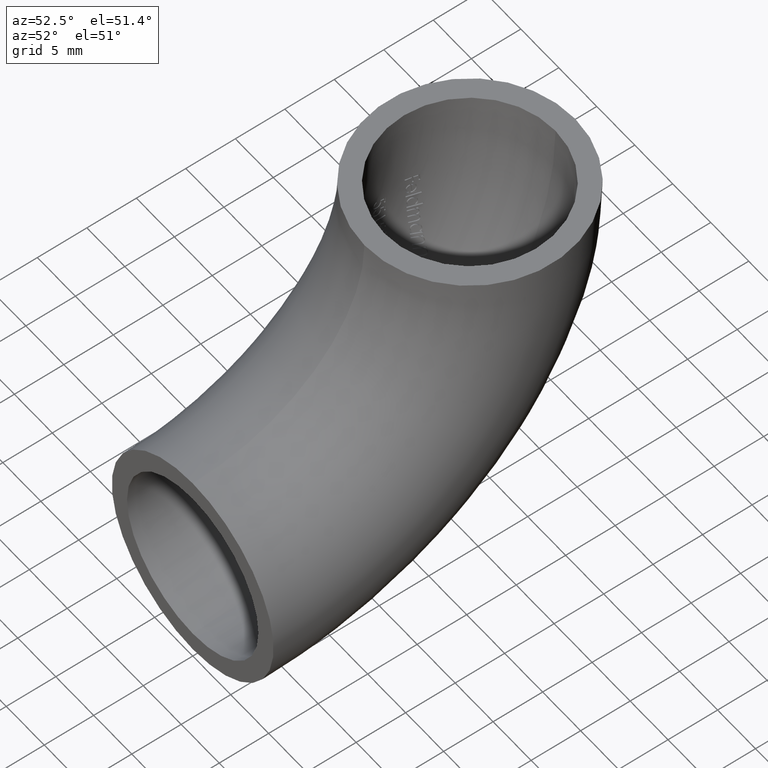
[diagram: clean part render]
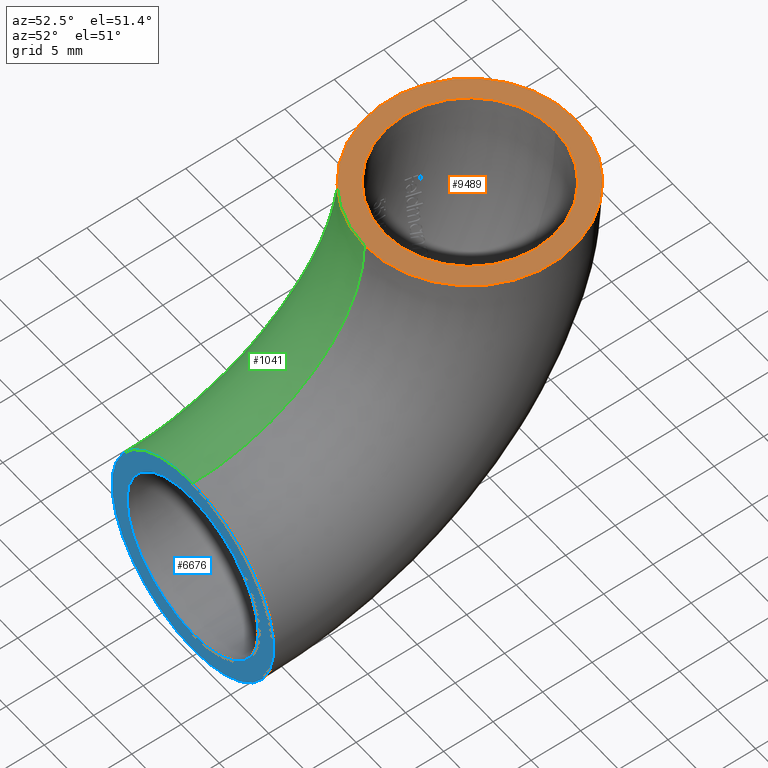
[diagram: same view with three faces highlighted in distinct colors, each labeled with its STEP entity id]
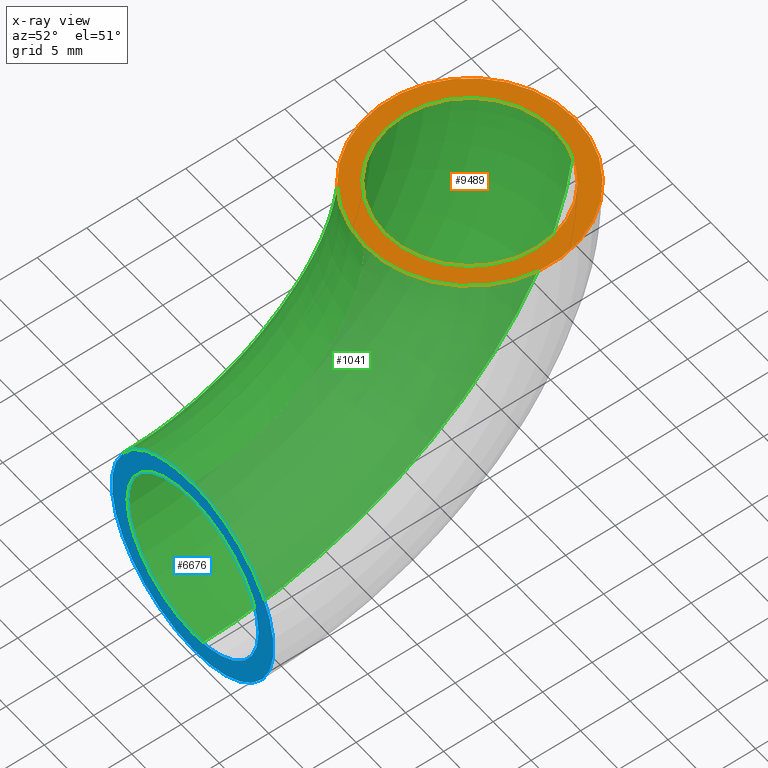
[diagram: x-ray of the same camera — body ghosted, the three highlighted faces saturated]
A machine part, auxiliary view with three faces highlighted in distinct colors.
The next image is the same camera in x-ray (body ghosted, the three faces saturated) — at least one of them is partly hidden behind the body in this view.
Their STEP definitions:

[orange] entity #9489 — the highlighted planar face has unit normal (0, 0, 1).
#23 = ORIENTED_EDGE ( 'NONE', *, *, #7517, .F. ) ;
#276 = DIRECTION ( 'NONE',  ( 0.0000000000000000000, 6.123233995736766000E-017, 1.000000000000000000 ) ) ;
#385 = CARTESIAN_POINT ( 'NONE',  ( 0.0000000000000000000, 28.00000000000000000, -1.714505518806294600E-015 ) ) ;
#405 = AXIS2_PLACEMENT_3D ( 'NONE', #11003, #3173, #2284 ) ;
#595 = VERTEX_POINT ( 'NONE', #2759 ) ;
#1650 = ORIENTED_EDGE ( 'NONE', *, *, #1679, .T. ) ;
#1679 = EDGE_CURVE ( 'NONE', #2364, #2563, #10826, .T. ) ;
#1910 = CARTESIAN_POINT ( 'NONE',  ( 0.0000000000000000000, 28.00000000000000000, -1.714505518806294600E-015 ) ) ;
#2033 = DIRECTION ( 'NONE',  ( 0.0000000000000000000, -1.000000000000000000, 6.123233995736766000E-017 ) ) ;
#2284 = DIRECTION ( 'NONE',  ( 0.0000000000000000000, -1.000000000000000000, 6.123233995736766000E-017 ) ) ;
#2364 = VERTEX_POINT ( 'NONE', #4855 ) ;
#2563 = VERTEX_POINT ( 'NONE', #10537 ) ;
#2759 = CARTESIAN_POINT ( 'NONE',  ( 0.0000000000000000000, 19.34999999999999800, -1.184845778175064300E-015 ) ) ;
#3173 = DIRECTION ( 'NONE',  ( 0.0000000000000000000, 6.123233995736766000E-017, 1.000000000000000000 ) ) ;
#3488 = AXIS2_PLACEMENT_3D ( 'NONE', #385, #5624, #7398 ) ;
#4126 = CARTESIAN_POINT ( 'NONE',  ( 0.0000000000000000000, 28.00000000000000000, -1.714505518806294600E-015 ) ) ;
#4150 = CARTESIAN_POINT ( 'NONE',  ( 0.0000000000000000000, 36.64999999999999900, -2.244165259437524800E-015 ) ) ;
#4196 = DIRECTION ( 'NONE',  ( 0.0000000000000000000, -1.000000000000000000, 6.123233995736766000E-017 ) ) ;
#4205 = FACE_BOUND ( 'NONE', #7485, .T. ) ;
#4356 = ORIENTED_EDGE ( 'NONE', *, *, #11332, .T. ) ;
#4357 = CIRCLE ( 'NONE', #8899, 8.650000000000002100 ) ;
#4548 = DIRECTION ( 'NONE',  ( 0.0000000000000000000, -1.000000000000000000, 6.123233995736766000E-017 ) ) ;
#4855 = CARTESIAN_POINT ( 'NONE',  ( 0.0000000000000000000, 17.35000000000000100, -1.062381098260328900E-015 ) ) ;
#5405 = VERTEX_POINT ( 'NONE', #4150 ) ;
#5517 = CARTESIAN_POINT ( 'NONE',  ( 0.0000000000000000000, 28.00000000000000000, -1.714505518806294600E-015 ) ) ;
#5581 = FACE_OUTER_BOUND ( 'NONE', #8752, .T. ) ;
#5624 = DIRECTION ( 'NONE',  ( 0.0000000000000000000, 6.123233995736766000E-017, 1.000000000000000000 ) ) ;
#5722 = CIRCLE ( 'NONE', #405, 8.650000000000002100 ) ;
#6594 = ORIENTED_EDGE ( 'NONE', *, *, #9423, .F. ) ;
#6919 = CIRCLE ( 'NONE', #3488, 10.65000000000000000 ) ;
#7398 = DIRECTION ( 'NONE',  ( 0.0000000000000000000, -1.000000000000000000, 6.123233995736766000E-017 ) ) ;
#7485 = EDGE_LOOP ( 'NONE', ( #23, #6594 ) ) ;
#7517 = EDGE_CURVE ( 'NONE', #595, #5405, #4357, .T. ) ;
#7748 = DIRECTION ( 'NONE',  ( 0.0000000000000000000, 6.123233995736766000E-017, 1.000000000000000000 ) ) ;
#8752 = EDGE_LOOP ( 'NONE', ( #1650, #4356 ) ) ;
#8899 = AXIS2_PLACEMENT_3D ( 'NONE', #1910, #9780, #4548 ) ;
#9423 = EDGE_CURVE ( 'NONE', #5405, #595, #5722, .T. ) ;
#9489 = ADVANCED_FACE ( 'NONE', ( #4205, #5581 ), #10307, .T. ) ;
#9780 = DIRECTION ( 'NONE',  ( 0.0000000000000000000, 6.123233995736766000E-017, 1.000000000000000000 ) ) ;
#9995 = AXIS2_PLACEMENT_3D ( 'NONE', #4126, #7748, #4196 ) ;
#10307 = PLANE ( 'NONE',  #9995 ) ;
#10537 = CARTESIAN_POINT ( 'NONE',  ( 0.0000000000000000000, 38.65000000000000600, -2.366629939352260000E-015 ) ) ;
#10826 = CIRCLE ( 'NONE', #10912, 10.65000000000000000 ) ;
#10912 = AXIS2_PLACEMENT_3D ( 'NONE', #5517, #276, #2033 ) ;
#11003 = CARTESIAN_POINT ( 'NONE',  ( 0.0000000000000000000, 28.00000000000000000, -1.714505518806294600E-015 ) ) ;
#11332 = EDGE_CURVE ( 'NONE', #2563, #2364, #6919, .T. ) ;

[blue] entity #6676 — the highlighted planar face has unit normal (0, 1, 0).
#311 = CARTESIAN_POINT ( 'NONE',  ( 0.0000000000000000000, 0.0000000000000000000, -36.64999999999999900 ) ) ;
#1002 = DIRECTION ( 'NONE',  ( 0.0000000000000000000, 0.0000000000000000000, 1.000000000000000000 ) ) ;
#1957 = EDGE_LOOP ( 'NONE', ( #4774, #9287 ) ) ;
#2053 = VERTEX_POINT ( 'NONE', #2421 ) ;
#2236 = EDGE_CURVE ( 'NONE', #9448, #3118, #8233, .T. ) ;
#2285 = AXIS2_PLACEMENT_3D ( 'NONE', #9203, #9125, #10853 ) ;
#2367 = AXIS2_PLACEMENT_3D ( 'NONE', #5465, #7946, #1002 ) ;
#2421 = CARTESIAN_POINT ( 'NONE',  ( 0.0000000000000000000, 0.0000000000000000000, -19.34999999999999800 ) ) ;
#2608 = EDGE_CURVE ( 'NONE', #2053, #7579, #5898, .T. ) ;
#3064 = EDGE_CURVE ( 'NONE', #3118, #9448, #6708, .T. ) ;
#3118 = VERTEX_POINT ( 'NONE', #8054 ) ;
#3480 = DIRECTION ( 'NONE',  ( 0.0000000000000000000, 0.0000000000000000000, 1.000000000000000000 ) ) ;
#4081 = EDGE_CURVE ( 'NONE', #7579, #2053, #9302, .T. ) ;
#4182 = AXIS2_PLACEMENT_3D ( 'NONE', #7783, #4309, #7005 ) ;
#4309 = DIRECTION ( 'NONE',  ( 0.0000000000000000000, 1.000000000000000000, 0.0000000000000000000 ) ) ;
#4315 = DIRECTION ( 'NONE',  ( 0.0000000000000000000, 1.000000000000000000, 0.0000000000000000000 ) ) ;
#4439 = DIRECTION ( 'NONE',  ( 0.0000000000000000000, 0.0000000000000000000, 1.000000000000000000 ) ) ;
#4547 = AXIS2_PLACEMENT_3D ( 'NONE', #8644, #4315, #3480 ) ;
#4612 = AXIS2_PLACEMENT_3D ( 'NONE', #7914, #9665, #4439 ) ;
#4774 = ORIENTED_EDGE ( 'NONE', *, *, #3064, .F. ) ;
#5041 = EDGE_LOOP ( 'NONE', ( #7751, #6677 ) ) ;
#5465 = CARTESIAN_POINT ( 'NONE',  ( 0.0000000000000000000, 0.0000000000000000000, -28.00000000000000000 ) ) ;
#5898 = CIRCLE ( 'NONE', #4547, 8.650000000000002100 ) ;
#6494 = PLANE ( 'NONE',  #2285 ) ;
#6676 = ADVANCED_FACE ( 'NONE', ( #8075, #7363 ), #6494, .F. ) ;
#6677 = ORIENTED_EDGE ( 'NONE', *, *, #4081, .T. ) ;
#6708 = CIRCLE ( 'NONE', #4182, 10.65000000000000000 ) ;
#7005 = DIRECTION ( 'NONE',  ( 0.0000000000000000000, 0.0000000000000000000, 1.000000000000000000 ) ) ;
#7363 = FACE_OUTER_BOUND ( 'NONE', #1957, .T. ) ;
#7579 = VERTEX_POINT ( 'NONE', #311 ) ;
#7751 = ORIENTED_EDGE ( 'NONE', *, *, #2608, .T. ) ;
#7783 = CARTESIAN_POINT ( 'NONE',  ( 0.0000000000000000000, 0.0000000000000000000, -28.00000000000000000 ) ) ;
#7914 = CARTESIAN_POINT ( 'NONE',  ( 0.0000000000000000000, 0.0000000000000000000, -28.00000000000000000 ) ) ;
#7946 = DIRECTION ( 'NONE',  ( 0.0000000000000000000, 1.000000000000000000, 0.0000000000000000000 ) ) ;
#8054 = CARTESIAN_POINT ( 'NONE',  ( 0.0000000000000000000, 0.0000000000000000000, -17.35000000000000100 ) ) ;
#8075 = FACE_BOUND ( 'NONE', #5041, .T. ) ;
#8233 = CIRCLE ( 'NONE', #4612, 10.65000000000000000 ) ;
#8644 = CARTESIAN_POINT ( 'NONE',  ( 0.0000000000000000000, 0.0000000000000000000, -28.00000000000000000 ) ) ;
#9125 = DIRECTION ( 'NONE',  ( 0.0000000000000000000, 1.000000000000000000, 0.0000000000000000000 ) ) ;
#9203 = CARTESIAN_POINT ( 'NONE',  ( 0.0000000000000000000, 0.0000000000000000000, -28.00000000000000000 ) ) ;
#9287 = ORIENTED_EDGE ( 'NONE', *, *, #2236, .F. ) ;
#9302 = CIRCLE ( 'NONE', #2367, 8.650000000000002100 ) ;
#9429 = CARTESIAN_POINT ( 'NONE',  ( 0.0000000000000000000, 0.0000000000000000000, -38.65000000000000600 ) ) ;
#9448 = VERTEX_POINT ( 'NONE', #9429 ) ;
#9665 = DIRECTION ( 'NONE',  ( 0.0000000000000000000, 1.000000000000000000, 0.0000000000000000000 ) ) ;
#10853 = DIRECTION ( 'NONE',  ( 0.0000000000000000000, -0.0000000000000000000, 1.000000000000000000 ) ) ;

[green] entity #1041 — the highlighted toroidal blend (fillet) surface has major radius 28 mm and minor (blend) radius 10.65 mm.
#385 = CARTESIAN_POINT ( 'NONE',  ( 0.0000000000000000000, 28.00000000000000000, -1.714505518806294600E-015 ) ) ;
#1041 = ADVANCED_FACE ( 'NONE', ( #7114 ), #3981, .T. ) ;
#1300 = ORIENTED_EDGE ( 'NONE', *, *, #11332, .F. ) ;
#1455 = ORIENTED_EDGE ( 'NONE', *, *, #6455, .F. ) ;
#1921 = AXIS2_PLACEMENT_3D ( 'NONE', #10490, #3514, #7048 ) ;
#2236 = EDGE_CURVE ( 'NONE', #9448, #3118, #8233, .T. ) ;
#2364 = VERTEX_POINT ( 'NONE', #4855 ) ;
#2563 = VERTEX_POINT ( 'NONE', #10537 ) ;
#2873 = CIRCLE ( 'NONE', #1921, 17.35000000000000100 ) ;
#3118 = VERTEX_POINT ( 'NONE', #8054 ) ;
#3488 = AXIS2_PLACEMENT_3D ( 'NONE', #385, #5624, #7398 ) ;
#3514 = DIRECTION ( 'NONE',  ( -1.000000000000000000, -0.0000000000000000000, -0.0000000000000000000 ) ) ;
#3981 = TOROIDAL_SURFACE ( 'NONE', #9098, 28.00000000000000000, 10.65000000000000000 ) ;
#3989 = ORIENTED_EDGE ( 'NONE', *, *, #5701, .T. ) ;
#4439 = DIRECTION ( 'NONE',  ( 0.0000000000000000000, 0.0000000000000000000, 1.000000000000000000 ) ) ;
#4612 = AXIS2_PLACEMENT_3D ( 'NONE', #7914, #9665, #4439 ) ;
#4855 = CARTESIAN_POINT ( 'NONE',  ( 0.0000000000000000000, 17.35000000000000100, -1.062381098260328900E-015 ) ) ;
#5486 = DIRECTION ( 'NONE',  ( 0.0000000000000000000, 0.0000000000000000000, 1.000000000000000000 ) ) ;
#5624 = DIRECTION ( 'NONE',  ( 0.0000000000000000000, 6.123233995736766000E-017, 1.000000000000000000 ) ) ;
#5701 = EDGE_CURVE ( 'NONE', #2563, #9448, #9313, .T. ) ;
#6134 = CARTESIAN_POINT ( 'NONE',  ( 0.0000000000000000000, 0.0000000000000000000, 0.0000000000000000000 ) ) ;
#6455 = EDGE_CURVE ( 'NONE', #2364, #3118, #2873, .T. ) ;
#6919 = CIRCLE ( 'NONE', #3488, 10.65000000000000000 ) ;
#7048 = DIRECTION ( 'NONE',  ( 0.0000000000000000000, 0.0000000000000000000, 1.000000000000000000 ) ) ;
#7050 = DIRECTION ( 'NONE',  ( 0.0000000000000000000, 0.0000000000000000000, 1.000000000000000000 ) ) ;
#7114 = FACE_OUTER_BOUND ( 'NONE', #9168, .T. ) ;
#7398 = DIRECTION ( 'NONE',  ( 0.0000000000000000000, -1.000000000000000000, 6.123233995736766000E-017 ) ) ;
#7903 = CARTESIAN_POINT ( 'NONE',  ( 0.0000000000000000000, 0.0000000000000000000, 0.0000000000000000000 ) ) ;
#7914 = CARTESIAN_POINT ( 'NONE',  ( 0.0000000000000000000, 0.0000000000000000000, -28.00000000000000000 ) ) ;
#8054 = CARTESIAN_POINT ( 'NONE',  ( 0.0000000000000000000, 0.0000000000000000000, -17.35000000000000100 ) ) ;
#8233 = CIRCLE ( 'NONE', #4612, 10.65000000000000000 ) ;
#8758 = DIRECTION ( 'NONE',  ( -1.000000000000000000, -0.0000000000000000000, -0.0000000000000000000 ) ) ;
#8894 = DIRECTION ( 'NONE',  ( -1.000000000000000000, -0.0000000000000000000, -0.0000000000000000000 ) ) ;
#9098 = AXIS2_PLACEMENT_3D ( 'NONE', #7903, #8758, #7050 ) ;
#9100 = ORIENTED_EDGE ( 'NONE', *, *, #2236, .T. ) ;
#9168 = EDGE_LOOP ( 'NONE', ( #1300, #3989, #9100, #1455 ) ) ;
#9313 = CIRCLE ( 'NONE', #10558, 38.65000000000000600 ) ;
#9429 = CARTESIAN_POINT ( 'NONE',  ( 0.0000000000000000000, 0.0000000000000000000, -38.65000000000000600 ) ) ;
#9448 = VERTEX_POINT ( 'NONE', #9429 ) ;
#9665 = DIRECTION ( 'NONE',  ( 0.0000000000000000000, 1.000000000000000000, 0.0000000000000000000 ) ) ;
#10490 = CARTESIAN_POINT ( 'NONE',  ( 1.304248841091931300E-015, 0.0000000000000000000, 0.0000000000000000000 ) ) ;
#10537 = CARTESIAN_POINT ( 'NONE',  ( 0.0000000000000000000, 38.65000000000000600, -2.366629939352260000E-015 ) ) ;
#10558 = AXIS2_PLACEMENT_3D ( 'NONE', #6134, #8894, #5486 ) ;
#11332 = EDGE_CURVE ( 'NONE', #2563, #2364, #6919, .T. ) ;